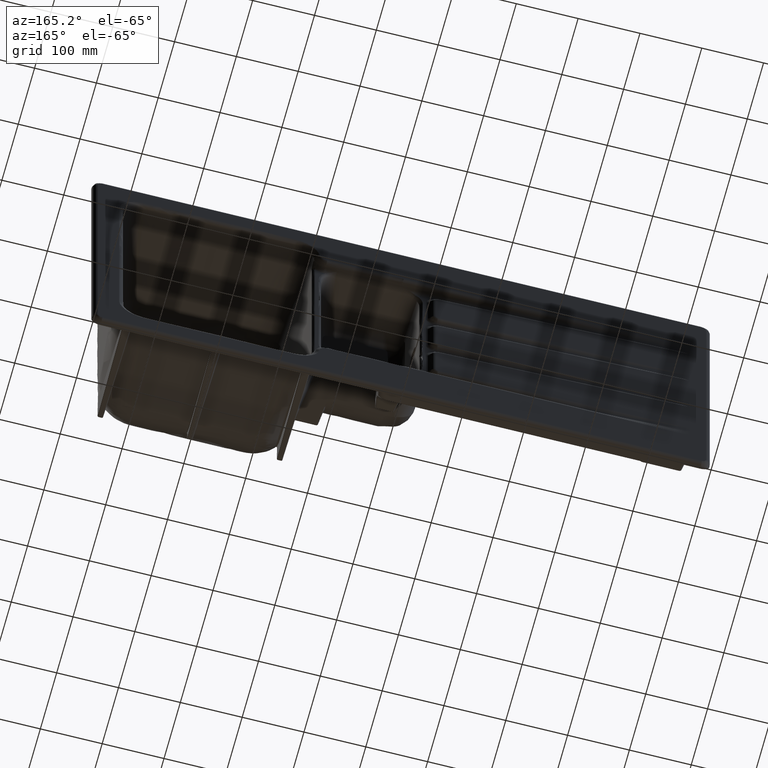
[diagram: clean part render]
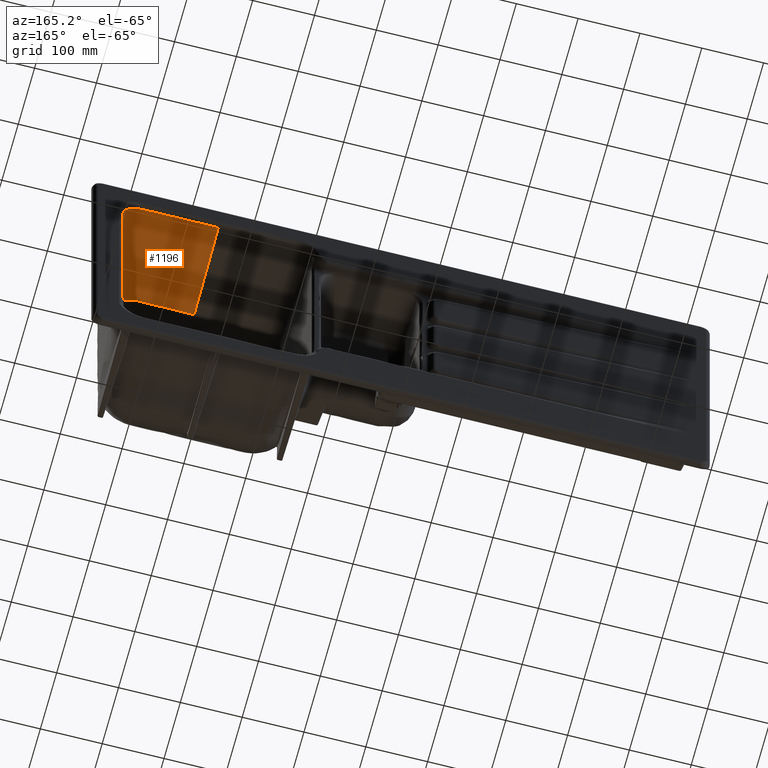
[diagram: same view with one face highlighted and labeled with its STEP entity id]
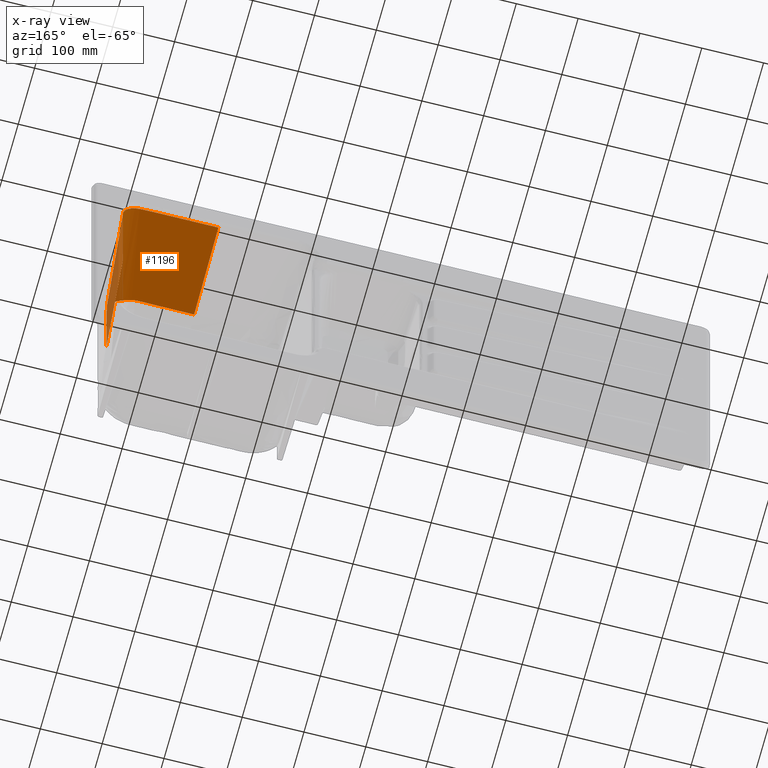
[diagram: x-ray of the same camera — body ghosted, the highlighted face saturated]
A machine part, auxiliary view. The second image highlights one B-rep face of the part: STEP entity #1196.
The next image is the same camera in x-ray: the body ghosted, the highlighted face saturated — about 8% of this face is hidden behind the body in this view.
In plain terms, the highlighted face is a freeform B-spline surface patch.
Its self-contained STEP definition (entity closure, byte-faithful):
#1196=ADVANCED_FACE('',(#1743),#1665,.T.);
#1665=B_SPLINE_SURFACE_WITH_KNOTS('',3,3,((#14514,#14515,#14516,#14517,
#14518,#14519,#14520,#14521,#14522,#14523,#14524,#14525,#14526,#14527,#14528,
#14529,#14530,#14531,#14532,#14533,#14534,#14535,#14536,#14537,#14538,#14539,
#14540,#14541,#14542,#14543,#14544,#14545,#14546,#14547,#14548,#14549,#14550,
#14551,#14552,#14553,#14554,#14555,#14556,#14557,#14558),(#14559,#14560,
#14561,#14562,#14563,#14564,#14565,#14566,#14567,#14568,#14569,#14570,#14571,
#14572,#14573,#14574,#14575,#14576,#14577,#14578,#14579,#14580,#14581,#14582,
#14583,#14584,#14585,#14586,#14587,#14588,#14589,#14590,#14591,#14592,#14593,
#14594,#14595,#14596,#14597,#14598,#14599,#14600,#14601,#14602,#14603),
(#14604,#14605,#14606,#14607,#14608,#14609,#14610,#14611,#14612,#14613,
#14614,#14615,#14616,#14617,#14618,#14619,#14620,#14621,#14622,#14623,#14624,
#14625,#14626,#14627,#14628,#14629,#14630,#14631,#14632,#14633,#14634,#14635,
#14636,#14637,#14638,#14639,#14640,#14641,#14642,#14643,#14644,#14645,#14646,
#14647,#14648),(#14649,#14650,#14651,#14652,#14653,#14654,#14655,#14656,
#14657,#14658,#14659,#14660,#14661,#14662,#14663,#14664,#14665,#14666,#14667,
#14668,#14669,#14670,#14671,#14672,#14673,#14674,#14675,#14676,#14677,#14678,
#14679,#14680,#14681,#14682,#14683,#14684,#14685,#14686,#14687,#14688,#14689,
#14690,#14691,#14692,#14693),(#14694,#14695,#14696,#14697,#14698,#14699,
#14700,#14701,#14702,#14703,#14704,#14705,#14706,#14707,#14708,#14709,#14710,
#14711,#14712,#14713,#14714,#14715,#14716,#14717,#14718,#14719,#14720,#14721,
#14722,#14723,#14724,#14725,#14726,#14727,#14728,#14729,#14730,#14731,#14732,
#14733,#14734,#14735,#14736,#14737,#14738)),.UNSPECIFIED.,.F.,.F.,.F.,(4,
1,4),(4,1,1,1,1,1,1,1,1,1,1,1,1,1,1,1,1,1,1,1,1,1,1,1,1,1,1,1,1,1,1,1,1,
1,1,1,1,1,1,1,1,1,4),(0.,0.5,1.),(0.,0.2,0.3,0.4,0.5,0.55,0.55625,0.559375,
0.5609375,0.5625,0.56328125,0.56875,0.575,0.5875,0.59375,0.596875,0.5984375,
0.6,0.6125,0.625,0.6375,0.65,0.6625,0.675,0.6875,0.7,0.7125,0.715625,0.7171875,
0.71875,0.721875,0.725,0.7375,0.75,0.7625,0.765625,0.7671875,0.76875,0.771875,
0.775,0.8,0.9,1.),.UNSPECIFIED.);
#1743=FACE_OUTER_BOUND('',#2200,.T.);
#2200=EDGE_LOOP('',(#3225,#3226,#3227,#3228));
#2692=B_SPLINE_CURVE_WITH_KNOTS('',3,(#10734,#10735,#10736,#10737,#10738,
#10739,#10740,#10741,#10742,#10743,#10744,#10745,#10746,#10747,#10748,#10749,
#10750,#10751,#10752,#10753,#10754,#10755,#10756,#10757,#10758,#10759,#10760,
#10761,#10762,#10763,#10764,#10765,#10766,#10767,#10768,#10769,#10770,#10771,
#10772,#10773,#10774,#10775,#10776,#10777,#10778,#10779,#10780,#10781,#10782,
#10783,#10784,#10785,#10786,#10787,#10788,#10789,#10790,#10791,#10792,#10793,
#10794,#10795,#10796,#10797,#10798,#10799,#10800),.UNSPECIFIED.,.F.,.F.,
(4,2,2,2,2,2,2,2,2,1,1,1,2,2,2,2,1,1,1,2,2,2,2,2,2,2,2,1,1,1,1,2,2,1,1,
1,1,1,2,2,4),(0.,0.25000000000012,0.31250000000015,0.343750000000166,0.359375000000174,
0.375000000000182,0.437500000000213,0.500000000000245,0.507812500000249,
0.511718750000251,0.513671875000252,0.514648437500252,0.515136718750252,
0.515625000000253,0.523437500000251,0.527343750000251,0.529296875000251,
0.53027343750025,0.53076171875025,0.53100585937525,0.53125000000025,0.546875000000241,
0.554687500000236,0.558593750000233,0.560546875000232,0.562500000000231,
0.593750000000212,0.609375000000203,0.617187500000199,0.621093750000196,
0.623046875000195,0.624023437500195,0.625000000000194,0.687500000000162,
0.718750000000146,0.734375000000138,0.742187500000134,0.746093750000132,
0.748046875000131,0.75000000000013,1.),.UNSPECIFIED.);
#2701=B_SPLINE_CURVE_WITH_KNOTS('',3,(#14386,#14387,#14388,#14389,#14390),
 .UNSPECIFIED.,.F.,.F.,(4,1,4),(0.,0.0449458794078479,1.),.UNSPECIFIED.);
#2702=B_SPLINE_CURVE_WITH_KNOTS('',3,(#14392,#14393,#14394,#14395,#14396,
#14397,#14398,#14399,#14400,#14401,#14402,#14403,#14404,#14405,#14406,#14407,
#14408,#14409,#14410,#14411,#14412,#14413,#14414,#14415,#14416,#14417,#14418,
#14419,#14420,#14421,#14422,#14423,#14424,#14425,#14426,#14427,#14428,#14429,
#14430,#14431,#14432,#14433,#14434,#14435,#14436,#14437,#14438,#14439,#14440,
#14441,#14442,#14443,#14444,#14445,#14446,#14447,#14448,#14449,#14450,#14451,
#14452,#14453,#14454,#14455,#14456,#14457,#14458,#14459,#14460,#14461,#14462,
#14463,#14464,#14465,#14466,#14467,#14468,#14469,#14470,#14471,#14472,#14473,
#14474,#14475,#14476,#14477,#14478,#14479,#14480,#14481,#14482,#14483,#14484,
#14485,#14486,#14487,#14488,#14489,#14490,#14491,#14492,#14493,#14494,#14495,
#14496,#14497,#14498,#14499,#14500,#14501,#14502,#14503,#14504,#14505,#14506,
#14507),.UNSPECIFIED.,.F.,.F.,(4,1,2,2,2,1,2,2,2,2,2,2,2,2,1,1,2,2,2,2,
2,2,2,2,2,2,2,2,2,2,2,2,2,2,2,2,2,2,2,2,2,1,1,1,2,2,2,2,2,2,1,2,2,2,2,2,
2,2,2,2,2,4),(0.,0.125000000000005,0.187500000000007,0.218750000000009,
0.234375000000009,0.24218750000001,0.24609375000001,0.248046875000011,0.249023437500011,
0.250000000000011,0.281250000000018,0.285156250000019,0.285644531250019,
0.286132812500019,0.287109375000018,0.289062500000016,0.296875000000011,
0.30078125000001,0.304687500000008,0.308593750000006,0.310546875000006,
0.312500000000005,0.320312500000001,0.321289062500001,0.322265625,0.324218749999999,
0.328124999999995,0.343749999999981,0.351562499999974,0.359374999999968,
0.374999999999954,0.39062499999994,0.398437499999934,0.406249999999927,
0.4374999999999,0.453124999999886,0.468749999999872,0.484374999999858,0.492187499999851,
0.496093749999847,0.498046874999846,0.499023437499845,0.499511718749845,
0.499755859374845,0.499877929687345,0.499999999999845,0.500976562499845,
0.501953124999845,0.503906249999845,0.507812499999845,0.508789062499846,
0.509277343749846,0.509765624999846,0.510253906249846,0.510742187499846,
0.511718749999846,0.515624999999847,0.531249999999852,0.562499999999862,
0.624999999999882,0.749999999999921,1.),.UNSPECIFIED.);
#2703=B_SPLINE_CURVE_WITH_KNOTS('',3,(#14509,#14510,#14511,#14512,#14513),
 .UNSPECIFIED.,.F.,.F.,(4,1,4),(0.,0.5,1.),.UNSPECIFIED.);
#3225=ORIENTED_EDGE('',*,*,#6030,.F.);
#3226=ORIENTED_EDGE('',*,*,#6031,.F.);
#3227=ORIENTED_EDGE('',*,*,#6032,.F.);
#3228=ORIENTED_EDGE('',*,*,#6012,.T.);
#5383=VERTEX_POINT('',#10733);
#5384=VERTEX_POINT('',#10801);
#5401=VERTEX_POINT('',#14391);
#5402=VERTEX_POINT('',#14508);
#6012=EDGE_CURVE('',#5384,#5383,#2692,.T.);
#6030=EDGE_CURVE('',#5401,#5383,#2701,.T.);
#6031=EDGE_CURVE('',#5402,#5401,#2702,.T.);
#6032=EDGE_CURVE('',#5384,#5402,#2703,.T.);
#10733=CARTESIAN_POINT('',(449.410126647943,-7.35768934570756,3.3520722148054E-6));
#10734=CARTESIAN_POINT('',(295.000033009706,-7.35768810026909,204.410081750924));
#10735=CARTESIAN_POINT('',(323.762872634016,-7.3576882387706,204.41008192212));
#10736=CARTESIAN_POINT('',(352.526818424716,-7.34570807435559,204.409053511811));
#10737=CARTESIAN_POINT('',(388.484506113243,-7.31575441930977,204.406672729104));
#10738=CARTESIAN_POINT('',(395.677822508684,-7.30901479005555,204.425932769051));
#10739=CARTESIAN_POINT('',(406.461886901031,-7.29778201393076,204.366805800515));
#10740=CARTESIAN_POINT('',(410.054766588432,-7.29385053348496,204.333253705506));
#10741=CARTESIAN_POINT('',(415.437079611096,-7.28767248482899,204.258270834636));
#10742=CARTESIAN_POINT('',(417.232832315598,-7.2855663306314,204.268628590184));
#10743=CARTESIAN_POINT('',(420.804936652063,-7.28126041394238,203.933736503266));
#10744=CARTESIAN_POINT('',(422.578301300992,-7.27906065145095,203.621933443321));
#10745=CARTESIAN_POINT('',(431.265339939342,-7.26782782113184,201.359272584579));
#10746=CARTESIAN_POINT('',(437.602068523727,-7.2580926981996,197.233527928148));
#10747=CARTESIAN_POINT('',(446.543337286838,-7.23712483281403,185.967109748013));
#10748=CARTESIAN_POINT('',(449.122336222742,-7.22582868387024,178.821826276105));
#10749=CARTESIAN_POINT('',(449.328845917198,-7.21242084684541,170.789604846908));
#10750=CARTESIAN_POINT('',(449.329101794107,-7.2178024693185,169.896169593573));
#10751=CARTESIAN_POINT('',(449.341135744542,-7.2361819693199,168.55503489026));
#10752=CARTESIAN_POINT('',(449.346427061515,-7.24794848563411,167.884194114461));
#10753=CARTESIAN_POINT('',(449.351561127445,-7.26618542479627,167.101096400305));
#10754=CARTESIAN_POINT('',(449.35389674369,-7.27643122784048,166.709438449428));
#10755=CARTESIAN_POINT('',(449.354850647415,-7.28106385766071,166.541562028729));
#10756=CARTESIAN_POINT('',(449.35547593466,-7.28420596005828,166.429639338122));
#10757=CARTESIAN_POINT('',(449.356030086953,-7.28713136141473,166.32794740893));
#10758=CARTESIAN_POINT('',(449.356969463863,-7.29218418322287,166.153895342832));
#10759=CARTESIAN_POINT('',(449.360818791732,-7.29776637253308,165.625075009387));
#10760=CARTESIAN_POINT('',(449.369219747676,-7.30737935558219,164.284033151015));
#10761=CARTESIAN_POINT('',(449.372431062133,-7.31079029707118,163.745712874936));
#10762=CARTESIAN_POINT('',(449.377359744753,-7.31621658176195,162.80121912143));
#10763=CARTESIAN_POINT('',(449.379848826302,-7.31900719196393,162.294718940854));
#10764=CARTESIAN_POINT('',(449.382648930114,-7.32239845932318,161.643849383665));
#10765=CARTESIAN_POINT('',(449.384001595828,-7.32412798000003,161.303425633654));
#10766=CARTESIAN_POINT('',(449.384568837158,-7.32487646444167,161.154317749963));
#10767=CARTESIAN_POINT('',(449.384943995217,-7.32537706766708,161.054198711983));
#10768=CARTESIAN_POINT('',(449.385260936317,-7.32580690919673,160.967758786807));
#10769=CARTESIAN_POINT('',(449.388743814567,-7.33056374442754,160.009022502961));
#10770=CARTESIAN_POINT('',(449.393123116343,-7.33419691507751,158.642865711614));
#10771=CARTESIAN_POINT('',(449.395195021087,-7.33807038685766,155.960294476629));
#10772=CARTESIAN_POINT('',(449.394984195834,-7.3390988264868,154.960565180557));
#10773=CARTESIAN_POINT('',(449.395179768955,-7.34024730719303,153.302677793205));
#10774=CARTESIAN_POINT('',(449.395255411718,-7.34056443741586,152.723665639687));
#10775=CARTESIAN_POINT('',(449.395375448097,-7.34094157294577,151.815572602516));
#10776=CARTESIAN_POINT('',(449.395417218347,-7.34105085814118,151.506279120519));
#10777=CARTESIAN_POINT('',(449.39550538787,-7.34123657260632,150.874500494429));
#10778=CARTESIAN_POINT('',(449.39555922754,-7.34132196889944,150.502834014003));
#10779=CARTESIAN_POINT('',(449.396272231162,-7.34218952842874,145.744539636986));
#10780=CARTESIAN_POINT('',(449.396926435027,-7.34291586941098,141.71697326847));
#10781=CARTESIAN_POINT('',(449.397795548515,-7.34387186658471,136.351868918513));
#10782=CARTESIAN_POINT('',(449.398203520715,-7.34431648046858,133.838377978691));
#10783=CARTESIAN_POINT('',(449.398626155396,-7.34477709449264,131.201829100319));
#10784=CARTESIAN_POINT('',(449.398823925589,-7.34499291124627,129.957518946356));
#10785=CARTESIAN_POINT('',(449.398919403276,-7.34509720133398,129.353854938103));
#10786=CARTESIAN_POINT('',(449.39895959137,-7.34514112218221,129.099104163245));
#10787=CARTESIAN_POINT('',(449.398986221111,-7.34517023059539,128.930150840308));
#10788=CARTESIAN_POINT('',(449.398993922137,-7.3451786490038,128.88127857972));
#10789=CARTESIAN_POINT('',(449.400208502799,-7.34650671603368,121.161860905386));
#10790=CARTESIAN_POINT('',(449.401806864828,-7.34830130107226,110.09625502179));
#10791=CARTESIAN_POINT('',(449.403388608728,-7.35010575979479,97.7733195295326));
#10792=CARTESIAN_POINT('',(449.404115210866,-7.35093601467108,91.7585878185053));
#10793=CARTESIAN_POINT('',(449.404463234789,-7.35133318940967,88.787906137363));
#10794=CARTESIAN_POINT('',(449.404633523386,-7.35152729365809,87.3117363570904));
#10795=CARTESIAN_POINT('',(449.404705716479,-7.35160952106257,86.6810573943404));
#10796=CARTESIAN_POINT('',(449.404753671272,-7.35166412602949,86.2610414701822));
#10797=CARTESIAN_POINT('',(449.404773945331,-7.35168720633331,86.0830909780978));
#10798=CARTESIAN_POINT('',(449.408311172243,-7.35571261763534,54.9411551211523));
#10799=CARTESIAN_POINT('',(449.410111574505,-7.35768822704235,26.3272115565521));
#10800=CARTESIAN_POINT('',(449.410111417805,-7.35768810026912,3.34282743224081E-6));
#10801=CARTESIAN_POINT('',(295.000033012614,-7.35769038518784,204.410110151615));
#14386=CARTESIAN_POINT('',(436.051988911837,-158.802344045959,3.34282748193738E-6));
#14387=CARTESIAN_POINT('',(436.269329609573,-156.534967570554,3.3428274817944E-6));
#14388=CARTESIAN_POINT('',(441.088473189725,-106.086585107794,3.34282747783449E-6));
#14389=CARTESIAN_POINT('',(445.524103126528,-55.6016993072301,3.34282745622116E-6));
#14390=CARTESIAN_POINT('',(449.410111417805,-7.35768810026897,3.34282747067908E-6));
#14391=CARTESIAN_POINT('',(436.051988911836,-158.802344045964,-2.72442016075284E-6));
#14392=CARTESIAN_POINT('',(295.000033009702,-156.289445109343,191.292528739458));
#14393=CARTESIAN_POINT('',(307.913101799891,-156.289606400951,191.29254136962));
#14394=CARTESIAN_POINT('',(327.281482695056,-156.267529174652,191.295241603768));
#14395=CARTESIAN_POINT('',(346.650665461854,-156.215512129597,191.301386157796));
#14396=CARTESIAN_POINT('',(356.335610090697,-156.18480827089,191.304984313203));
#14397=CARTESIAN_POINT('',(359.563984917866,-156.173810054597,191.306269222873));
#14398=CARTESIAN_POINT('',(364.406619895689,-156.15628951399,191.308268483869));
#14399=CARTESIAN_POINT('',(366.02084423464,-156.150193552652,191.308956075039));
#14400=CARTESIAN_POINT('',(368.44220028133,-156.140925487038,191.30999212909));
#14401=CARTESIAN_POINT('',(369.652884960633,-156.136598263578,191.310479308582));
#14402=CARTESIAN_POINT('',(370.863574042843,-156.131695436702,191.311017898926));
#14403=CARTESIAN_POINT('',(371.468918823597,-156.129061762474,191.311303903581));
#14404=CARTESIAN_POINT('',(371.670700527487,-156.128115914423,191.311405523958));
#14405=CARTESIAN_POINT('',(371.973371241107,-156.126539474288,191.311572670543));
#14406=CARTESIAN_POINT('',(372.074261171732,-156.125990561627,191.31163057348));
#14407=CARTESIAN_POINT('',(372.276040083489,-156.124845675568,191.311750787738));
#14408=CARTESIAN_POINT('',(372.422225257502,-156.1239715175,191.31184207235));
#14409=CARTESIAN_POINT('',(374.256766076399,-156.112704761876,191.31301551942));
#14410=CARTESIAN_POINT('',(377.298537629162,-156.088193285339,191.315418684363));
#14411=CARTESIAN_POINT('',(382.150787309484,-155.993415457746,191.325050256047));
#14412=CARTESIAN_POINT('',(382.713266802304,-155.982128693025,191.326264306751));
#14413=CARTESIAN_POINT('',(383.368633219332,-155.968330669756,191.327518396222));
#14414=CARTESIAN_POINT('',(383.441671810064,-155.966776377207,191.327656108857));
#14415=CARTESIAN_POINT('',(383.588049702334,-155.96361418816,191.327933479631));
#14416=CARTESIAN_POINT('',(383.575780907569,-155.963874217608,191.327910415605));
#14417=CARTESIAN_POINT('',(383.632133980247,-155.962643078654,191.328017860511));
#14418=CARTESIAN_POINT('',(383.744693528867,-155.96016368229,191.328233797797));
#14419=CARTESIAN_POINT('',(384.155496999415,-155.950860723001,191.329049026802));
#14420=CARTESIAN_POINT('',(384.52131986335,-155.941618904879,191.329933574374));
#14421=CARTESIAN_POINT('',(384.945942279862,-155.929227772565,191.331410528348));
#14422=CARTESIAN_POINT('',(385.086014276703,-155.924933693924,191.331986859349));
#14423=CARTESIAN_POINT('',(385.393222579266,-155.918068232423,191.332975666037));
#14424=CARTESIAN_POINT('',(385.528531538913,-155.91328016252,191.333923635816));
#14425=CARTESIAN_POINT('',(385.964231047946,-155.915073220194,191.333409924088));
#14426=CARTESIAN_POINT('',(386.29496829232,-155.92340540674,191.332983097876));
#14427=CARTESIAN_POINT('',(387.094372558505,-155.959615109643,191.316844210051));
#14428=CARTESIAN_POINT('',(387.53719370148,-155.984979077931,191.3040764055));
#14429=CARTESIAN_POINT('',(388.367257803841,-156.034834127106,191.267051146354));
#14430=CARTESIAN_POINT('',(388.776048291197,-156.06059726079,191.243385002504));
#14431=CARTESIAN_POINT('',(390.797078452428,-156.193783793128,191.100646397585));
#14432=CARTESIAN_POINT('',(392.331040696783,-156.312303224039,190.914563628671));
#14433=CARTESIAN_POINT('',(394.079547467261,-156.468417692254,190.613730293491));
#14434=CARTESIAN_POINT('',(394.274126895209,-156.486090738869,190.578981872118));
#14435=CARTESIAN_POINT('',(394.664271790331,-156.522132161249,190.506757709249));
#14436=CARTESIAN_POINT('',(394.71821497551,-156.527249999824,190.496204817563));
#14437=CARTESIAN_POINT('',(395.034653280214,-156.557074434351,190.435134123014));
#14438=CARTESIAN_POINT('',(395.246319782895,-156.577375374986,190.392807481661));
#14439=CARTESIAN_POINT('',(395.884163734478,-156.63960978213,190.260834426502));
#14440=CARTESIAN_POINT('',(396.312345540501,-156.682807638032,190.166269442894));
#14441=CARTESIAN_POINT('',(398.461494211219,-156.906995778082,189.659064061278));
#14442=CARTESIAN_POINT('',(400.217162828406,-157.113580496066,189.141952325875));
#14443=CARTESIAN_POINT('',(402.888400072632,-157.465486774112,188.165544362896));
#14444=CARTESIAN_POINT('',(403.864116272667,-157.604725640173,187.767702332318));
#14445=CARTESIAN_POINT('',(405.192554977655,-157.788425414138,187.192318908307));
#14446=CARTESIAN_POINT('',(405.855849844969,-157.876617317336,186.888479969066));
#14447=CARTESIAN_POINT('',(407.816143120962,-158.126550510682,185.940424396447));
#14448=CARTESIAN_POINT('',(409.107759990128,-158.276813476249,185.247743024197));
#14449=CARTESIAN_POINT('',(411.627650167201,-158.541059964254,183.756378086655));
#14450=CARTESIAN_POINT('',(412.833228687412,-158.652769238376,182.971974605423));
#14451=CARTESIAN_POINT('',(414.550443311657,-158.792008144164,181.758351005273));
#14452=CARTESIAN_POINT('',(415.013379326227,-158.826567967874,181.416757120036));
#14453=CARTESIAN_POINT('',(415.98518666997,-158.894464616638,180.67694552106));
#14454=CARTESIAN_POINT('',(416.477053409534,-158.926143239007,180.289419665437));
#14455=CARTESIAN_POINT('',(418.963716758254,-159.071079917738,178.25538563016));
#14456=CARTESIAN_POINT('',(421.026782659002,-159.143452754181,176.331827540945));
#14457=CARTESIAN_POINT('',(424.086018300738,-159.133967671692,172.903464484159));
#14458=CARTESIAN_POINT('',(425.10913247808,-159.110424372232,171.657439381731));
#14459=CARTESIAN_POINT('',(427.069487263239,-159.016154729577,169.025069068094));
#14460=CARTESIAN_POINT('',(428.010595739791,-158.946329167383,167.638981397016));
#14461=CARTESIAN_POINT('',(429.848253149958,-158.743086829164,164.61273721377));
#14462=CARTESIAN_POINT('',(430.739069937772,-158.609591068181,162.977817579066));
#14463=CARTESIAN_POINT('',(431.991776083591,-158.347217905304,160.320600997917));
#14464=CARTESIAN_POINT('',(432.395972579527,-158.248831486526,159.397500497513));
#14465=CARTESIAN_POINT('',(432.964260441125,-158.087742751329,157.988336004866));
#14466=CARTESIAN_POINT('',(433.147501928659,-158.031836598843,157.514591438961));
#14467=CARTESIAN_POINT('',(433.411156219088,-157.94518246651,156.802355709088));
#14468=CARTESIAN_POINT('',(433.4971494471,-157.915838942754,156.564728564485));
#14469=CARTESIAN_POINT('',(433.623149986289,-157.871176429617,156.208324306089));
#14470=CARTESIAN_POINT('',(433.685511730048,-157.848651805755,156.029883571074));
#14471=CARTESIAN_POINT('',(433.757159671496,-157.822027492425,155.821249998034));
#14472=CARTESIAN_POINT('',(433.792708092723,-157.808628028337,155.716815544095));
#14473=CARTESIAN_POINT('',(433.807884225515,-157.802866594236,155.672032223341));
#14474=CARTESIAN_POINT('',(433.817988573277,-157.799021448007,155.642170911641));
#14475=CARTESIAN_POINT('',(433.812027517642,-157.801305332596,155.65986237208));
#14476=CARTESIAN_POINT('',(433.956439719525,-157.746087438889,155.231809358581));
#14477=CARTESIAN_POINT('',(434.07430084848,-157.698870772081,154.869640457644));
#14478=CARTESIAN_POINT('',(434.325634194869,-157.588877142147,154.063814689949));
#14479=CARTESIAN_POINT('',(434.493517387403,-157.507556100267,153.503976633706));
#14480=CARTESIAN_POINT('',(434.932416075023,-157.288911619788,151.917467560159));
#14481=CARTESIAN_POINT('',(435.179297684045,-157.154452857185,150.877683287083));
#14482=CARTESIAN_POINT('',(435.803111822132,-156.781737087143,147.80096679773));
#14483=CARTESIAN_POINT('',(436.068426108481,-156.5656247803,145.734425486461));
#14484=CARTESIAN_POINT('',(436.234194782992,-156.355125569649,143.34289455466));
#14485=CARTESIAN_POINT('',(436.272025456295,-156.296344308061,142.640283280362));
#14486=CARTESIAN_POINT('',(436.294175979806,-156.243947972636,141.962778652064));
#14487=CARTESIAN_POINT('',(436.30569960039,-156.210417307473,141.517003114324));
#14488=CARTESIAN_POINT('',(436.310328070485,-156.190351363279,141.258850875761));
#14489=CARTESIAN_POINT('',(436.314147861085,-156.170921079225,140.933115486172));
#14490=CARTESIAN_POINT('',(436.313966903276,-156.172599700911,140.877268417076));
#14491=CARTESIAN_POINT('',(436.314315441553,-156.172254857435,140.730816031189));
#14492=CARTESIAN_POINT('',(436.314338334193,-156.172812235479,140.664388153508));
#14493=CARTESIAN_POINT('',(436.314176764254,-156.175835722171,140.477840728093));
#14494=CARTESIAN_POINT('',(436.313744708757,-156.179796280742,140.37182775197));
#14495=CARTESIAN_POINT('',(436.311352023307,-156.202453824873,139.869684618589));
#14496=CARTESIAN_POINT('',(436.308735872984,-156.227054050549,139.531229395975));
#14497=CARTESIAN_POINT('',(436.298208052106,-156.337259230482,137.725925469704));
#14498=CARTESIAN_POINT('',(436.29118010378,-156.412632619764,136.176659943124));
#14499=CARTESIAN_POINT('',(436.268143604088,-156.650142266382,131.694730498758));
#14500=CARTESIAN_POINT('',(436.253660226117,-156.80029131299,128.70396928597));
#14501=CARTESIAN_POINT('',(436.212760895163,-157.223704305039,119.732159015146));
#14502=CARTESIAN_POINT('',(436.188792468725,-157.471015884561,113.74882794002));
#14503=CARTESIAN_POINT('',(436.131075308595,-158.057837558834,95.7958960063355));
#14504=CARTESIAN_POINT('',(436.121195572631,-158.143455704859,83.8198473146721));
#14505=CARTESIAN_POINT('',(436.074615865114,-158.587543319428,47.8973373578723));
#14506=CARTESIAN_POINT('',(436.051987346934,-158.802357571479,23.9487513249653));
#14507=CARTESIAN_POINT('',(436.051988911837,-158.802344045959,3.3428272366681E-6));
#14508=CARTESIAN_POINT('',(294.999917440254,-156.289445062105,191.292528258012));
#14509=CARTESIAN_POINT('',(295.000033009706,-1.13686837721616E-12,205.000003342828));
#14510=CARTESIAN_POINT('',(295.000033009706,-50.6995016572681,200.953871699917));
#14511=CARTESIAN_POINT('',(295.000033009706,-152.036766958223,192.088009793362));
#14512=CARTESIAN_POINT('',(295.000033009707,-253.226964426287,181.677014660903));
#14513=CARTESIAN_POINT('',(295.000033009707,-303.822063160319,176.471517094673));
#14514=CARTESIAN_POINT('',(450.000026942931,-2.86200524837289E-12,-86.4590664029188));
#14515=CARTESIAN_POINT('',(450.000030803607,-2.79135910385021E-12,-57.639376472613));
#14516=CARTESIAN_POINT('',(450.000034112758,-2.66951859082273E-12,-14.4098415974813));
#14517=CARTESIAN_POINT('',(450.000031906658,-2.46474111680355E-12,43.2295381818222));
#14518=CARTESIAN_POINT('',(450.000002592651,-2.29401891202888E-12,86.4590728301297));
#14519=CARTESIAN_POINT('',(450.000125088166,-2.14082001622003E-12,122.48368604529));
#14520=CARTESIAN_POINT('',(449.999919555893,-2.04151842464747E-12,144.999067365592));
#14521=CARTESIAN_POINT('',(450.000075760421,-2.0033895776466E-12,153.554913878198));
#14522=CARTESIAN_POINT('',(450.000099139717,-1.99635416840861E-12,155.130990830267));
#14523=CARTESIAN_POINT('',(450.000109159415,-1.99233066043473E-12,156.031606208486));
#14524=CARTESIAN_POINT('',(450.000113655434,-1.98981461652048E-12,156.594490807729));
#14525=CARTESIAN_POINT('',(450.000119436029,-1.98478052072752E-12,157.720259984136));
#14526=CARTESIAN_POINT('',(450.000113783891,-1.97671744106402E-12,159.521490563936));
#14527=CARTESIAN_POINT('',(450.000018211384,-1.96106529001293E-12,163.011374230497));
#14528=CARTESIAN_POINT('',(449.999722244909,-1.94486075532175E-12,166.613833432952));
#14529=CARTESIAN_POINT('',(450.000499156905,-1.93064368367312E-12,169.765992357469));
#14530=CARTESIAN_POINT('',(449.999335771464,-1.92352605156349E-12,171.342061151405));
#14531=CARTESIAN_POINT('',(450.001427684451,-1.91945629565691E-12,172.242690843221));
#14532=CARTESIAN_POINT('',(449.96185422873,-1.90927772777714E-12,174.494011471142));
#14533=CARTESIAN_POINT('',(449.541577697709,-1.891942591115E-12,178.311377584054));
#14534=CARTESIAN_POINT('',(448.077246753315,-1.86739807601258E-12,183.53177021299));
#14535=CARTESIAN_POINT('',(445.781685244506,-1.84279003661639E-12,188.44364425805));
#14536=CARTESIAN_POINT('',(442.716079962637,-1.81812632962383E-12,192.915592768773));
#14537=CARTESIAN_POINT('',(438.962472146825,-1.79341481173228E-12,196.827973548328));
#14538=CARTESIAN_POINT('',(434.621294148291,-1.76866333963914E-12,200.076115966565));
#14539=CARTESIAN_POINT('',(429.808680946529,-1.74387977004179E-12,202.573118492129));
#14540=CARTESIAN_POINT('',(424.653388847511,-1.71907195963763E-12,204.252186907284));
#14541=CARTESIAN_POINT('',(420.633361335484,-1.70045381375244E-12,204.864320003979));
#14542=CARTESIAN_POINT('',(418.159093222678,-1.68907361518548E-12,204.985001900019));
#14543=CARTESIAN_POINT('',(417.25857432114,-1.68493515605995E-12,205.001316357585));
#14544=CARTESIAN_POINT('',(416.357938934708,-1.68079658066046E-12,204.99956173464));
#14545=CARTESIAN_POINT('',(415.232169347361,-1.67562318176018E-12,204.999445163959));
#14546=CARTESIAN_POINT('',(412.530334016173,-1.66320669503838E-12,205.000570290745));
#14547=CARTESIAN_POINT('',(408.477557259399,-1.64458165055819E-12,205.000139217314));
#14548=CARTESIAN_POINT('',(403.073868415024,-1.61975544390069E-12,204.999989380787));
#14549=CARTESIAN_POINT('',(399.021100473251,-1.60114707091768E-12,204.999941007427));
#14550=CARTESIAN_POINT('',(396.544408597287,-1.58978184714559E-12,204.99992900256));
#14551=CARTESIAN_POINT('',(395.643793334749,-1.58564981548718E-12,204.999926364531));
#14552=CARTESIAN_POINT('',(394.743178050242,-1.5815183222796E-12,204.999924815457));
#14553=CARTESIAN_POINT('',(393.617408905867,-1.57635500372817E-12,204.999924803471));
#14554=CARTESIAN_POINT('',(389.114332147887,-1.55570772783507E-12,204.999933766156));
#14555=CARTESIAN_POINT('',(370.651714592646,-1.47117211533637E-12,205.000113648618));
#14556=CARTESIAN_POINT('',(338.229564825132,-1.3241134165031E-12,205.000103687895));
#14557=CARTESIAN_POINT('',(309.409877958621,-1.19805902317957E-12,205.000003342827));
#14558=CARTESIAN_POINT('',(295.000033009706,-1.13686837721616E-12,205.000003342828));
#14559=CARTESIAN_POINT('',(445.91048938509,-50.6900788914352,-83.7013058682579));
#14560=CARTESIAN_POINT('',(445.938299073379,-50.6937521730323,-55.807534638195));
#14561=CARTESIAN_POINT('',(445.962005918391,-50.698543409898,-13.9578798086972));
#14562=CARTESIAN_POINT('',(445.94559454528,-50.7030152309722,41.8656545890427));
#14563=CARTESIAN_POINT('',(445.913768618184,-50.7054108494048,83.7408017043102));
#14564=CARTESIAN_POINT('',(445.874798708956,-50.7066086586208,118.63925601866));
#14565=CARTESIAN_POINT('',(445.846052714253,-50.7069829740008,140.450200618262));
#14566=CARTESIAN_POINT('',(445.835069201283,-50.7070718739035,148.738150982921));
#14567=CARTESIAN_POINT('',(445.832849017135,-50.7070866125716,150.264872164807));
#14568=CARTESIAN_POINT('',(445.83187502011,-50.7070945667733,151.137281669986));
#14569=CARTESIAN_POINT('',(445.831157664366,-50.7070993431936,151.68253672902));
#14570=CARTESIAN_POINT('',(445.828201078285,-50.7071086036001,152.773045090365));
#14571=CARTESIAN_POINT('',(445.810959031978,-50.7071221725327,154.517770250807));
#14572=CARTESIAN_POINT('',(445.731319655156,-50.7071439296141,157.895909517767));
#14573=CARTESIAN_POINT('',(445.571652079364,-50.7071589022293,161.375648460881));
#14574=CARTESIAN_POINT('',(445.365954827145,-50.7071654527484,164.407492265778));
#14575=CARTESIAN_POINT('',(445.245480484214,-50.7071670903782,165.919369511463));
#14576=CARTESIAN_POINT('',(445.173799596138,-50.7071675582724,166.782054334866));
#14577=CARTESIAN_POINT('',(444.956976269679,-50.7071679481842,168.936412860145));
#14578=CARTESIAN_POINT('',(444.294047130515,-50.707162645383,172.574853916342));
#14579=CARTESIAN_POINT('',(442.630874722334,-50.7071401864601,177.539988479614));
#14580=CARTESIAN_POINT('',(440.272829293652,-50.707102754922,182.22612295569));
#14581=CARTESIAN_POINT('',(437.268865836067,-50.7070503507688,186.532634212439));
#14582=CARTESIAN_POINT('',(433.681793841634,-50.7069829740002,190.366473307015));
#14583=CARTESIAN_POINT('',(429.589158440313,-50.7069006246166,193.64642879238));
#14584=CARTESIAN_POINT('',(425.079517277945,-50.7068033026178,196.303612867625));
#14585=CARTESIAN_POINT('',(420.251698181824,-50.7066910080036,198.28504405846));
#14586=CARTESIAN_POINT('',(416.470792592983,-50.7065955575817,199.235215960617));
#14587=CARTESIAN_POINT('',(414.130673029146,-50.7065329377379,199.605606227396));
#14588=CARTESIAN_POINT('',(413.27736506793,-50.7065096989913,199.71737011109));
#14589=CARTESIAN_POINT('',(412.422794593857,-50.7064861483154,199.814043874309));
#14590=CARTESIAN_POINT('',(411.352446255261,-50.7064561251026,199.930538084317));
#14591=CARTESIAN_POINT('',(408.777178322539,-50.706382197815,200.192553666987));
#14592=CARTESIAN_POINT('',(404.891783070833,-50.7062642884702,200.51415236644));
#14593=CARTESIAN_POINT('',(399.678051429959,-50.7060921033953,200.791433363464));
#14594=CARTESIAN_POINT('',(395.753895968055,-50.7059517351277,200.884887280545));
#14595=CARTESIAN_POINT('',(393.354686401623,-50.7058616654893,200.896827252207));
#14596=CARTESIAN_POINT('',(392.482240277124,-50.7058284449993,200.897755926497));
#14597=CARTESIAN_POINT('',(391.609794176525,-50.7057949125798,200.898305122344));
#14598=CARTESIAN_POINT('',(390.519238930268,-50.7057524121877,200.8995977285));
#14599=CARTESIAN_POINT('',(386.157021390172,-50.7055792913244,200.903989979736));
#14600=CARTESIAN_POINT('',(368.272042419469,-50.7048119447949,200.921906128874));
#14601=CARTESIAN_POINT('',(336.86568204379,-50.70301523097,200.945581279694));
#14602=CARTESIAN_POINT('',(308.953917056767,-50.7007793204324,200.953770564956));
#14603=CARTESIAN_POINT('',(295.000033009706,-50.699501657268,200.953871699917));
#14604=CARTESIAN_POINT('',(437.045418486883,-152.023783683109,-78.0364518224806));
#14605=CARTESIAN_POINT('',(437.072879783955,-152.028844959769,-52.0309227555525));
#14606=CARTESIAN_POINT('',(437.096178416536,-152.035446624981,-13.0136885711246));
#14607=CARTESIAN_POINT('',(437.079527758574,-152.041608179189,39.0331318988743));
#14608=CARTESIAN_POINT('',(437.047679573656,-152.044909011808,78.0756950607204));
#14609=CARTESIAN_POINT('',(437.008589813776,-152.046559428125,110.613647655118));
#14610=CARTESIAN_POINT('',(436.979786807169,-152.047075183231,130.949282725527));
#14611=CARTESIAN_POINT('',(436.969114878452,-152.047197675071,138.676614383514));
#14612=CARTESIAN_POINT('',(436.966596411427,-152.047217982928,140.10006457664));
#14613=CARTESIAN_POINT('',(436.966055679882,-152.047228942725,140.913461028096));
#14614=CARTESIAN_POINT('',(436.965398601146,-152.047235523975,141.421832922905));
#14615=CARTESIAN_POINT('',(436.959529952777,-152.047248283542,142.438574129781));
#14616=CARTESIAN_POINT('',(436.912655395968,-152.047266979664,144.065106982331));
#14617=CARTESIAN_POINT('',(436.683376784264,-152.047296957931,147.209761993677));
#14618=CARTESIAN_POINT('',(436.21483090771,-152.047317588137,150.433819013241));
#14619=CARTESIAN_POINT('',(435.604907202542,-152.047326613853,153.216145990359));
#14620=CARTESIAN_POINT('',(435.25019343598,-152.047328870282,154.595216469929));
#14621=CARTESIAN_POINT('',(435.033477246938,-152.047329514977,155.379489490124));
#14622=CARTESIAN_POINT('',(434.468439851076,-152.047330052223,157.333628333702));
#14623=CARTESIAN_POINT('',(433.330966141416,-152.047322745695,160.603591969818));
#14624=CARTESIAN_POINT('',(431.285472912964,-152.047291800392,165.043413024952));
#14625=CARTESIAN_POINT('',(428.817974723075,-152.047240224886,169.263494502003));
#14626=CARTESIAN_POINT('',(425.952945327701,-152.047168019176,173.224798541639));
#14627=CARTESIAN_POINT('',(422.714713088638,-152.047075183262,176.887480345118));
#14628=CARTESIAN_POINT('',(419.135031057199,-152.046961717145,180.21726446775));
#14629=CARTESIAN_POINT('',(415.247284575782,-152.046827620824,183.181308205651));
#14630=CARTESIAN_POINT('',(411.090426878196,-152.046672894299,185.754273207559));
#14631=CARTESIAN_POINT('',(407.799812046115,-152.046541376753,187.370875914831));
#14632=CARTESIAN_POINT('',(405.735360036777,-152.046455095225,188.234887044944));
#14633=CARTESIAN_POINT('',(404.979154906893,-152.04642307543,188.535453169394));
#14634=CARTESIAN_POINT('',(404.219395685409,-152.04639062584,188.826894459739));
#14635=CARTESIAN_POINT('',(403.263242437753,-152.046349257984,189.174012572541));
#14636=CARTESIAN_POINT('',(400.949157562626,-152.046247396354,189.951619710849));
#14637=CARTESIAN_POINT('',(397.410603281819,-152.046084933503,190.908164830382));
#14638=CARTESIAN_POINT('',(392.592884241687,-152.045847686163,191.728538901194));
#14639=CARTESIAN_POINT('',(388.938009842262,-152.045654278005,192.000470861977));
#14640=CARTESIAN_POINT('',(386.701120760941,-152.045530174438,192.031223725226));
#14641=CARTESIAN_POINT('',(385.887686353049,-152.045484401174,192.032176914141));
#14642=CARTESIAN_POINT('',(385.074251068299,-152.045438198114,192.031998325797));
#14643=CARTESIAN_POINT('',(384.057462231278,-152.045379638422,192.033606229253));
#14644=CARTESIAN_POINT('',(379.990306276176,-152.045141101694,192.037775039228));
#14645=CARTESIAN_POINT('',(363.315085903,-152.044083803764,192.055977251687));
#14646=CARTESIAN_POINT('',(334.033160976497,-152.041608179337,192.079344399326));
#14647=CARTESIAN_POINT('',(308.009751330757,-152.038527402265,192.087823420657));
#14648=CARTESIAN_POINT('',(295.000033009706,-152.036766958223,192.088009793362));
#14649=CARTESIAN_POINT('',(426.805698256212,-253.262353742377,-72.0725608230174));
#14650=CARTESIAN_POINT('',(426.722965973776,-253.248557907459,-48.0284622815413));
#14651=CARTESIAN_POINT('',(426.6526618636,-253.230563340167,-11.9891936256897));
#14652=CARTESIAN_POINT('',(426.702374552639,-253.213768410672,35.9914868318124));
#14653=CARTESIAN_POINT('',(426.797997821234,-253.204771126999,71.9546026219884));
#14654=CARTESIAN_POINT('',(426.914743363566,-253.200272485146,101.916413490121));
#14655=CARTESIAN_POINT('',(426.999669068224,-253.198866659553,120.644301791464));
#14656=CARTESIAN_POINT('',(427.034374113724,-253.19853277597,127.761519617602));
#14657=CARTESIAN_POINT('',(427.039913058674,-253.198477421587,129.072608723642));
#14658=CARTESIAN_POINT('',(427.044595481174,-253.198447547793,129.821805888083));
#14659=CARTESIAN_POINT('',(427.046998638674,-253.198429608872,130.290056658313));
#14660=CARTESIAN_POINT('',(427.044227179485,-253.198394829332,131.2265600285));
#14661=CARTESIAN_POINT('',(426.977374553402,-253.198343868153,132.724570014451));
#14662=CARTESIAN_POINT('',(426.617301559622,-253.198262154538,135.615811797968));
#14663=CARTESIAN_POINT('',(425.859551588734,-253.198205921511,138.563766626891));
#14664=CARTESIAN_POINT('',(424.862794848244,-253.19818131956,141.078856957059));
#14665=CARTESIAN_POINT('',(424.282581077837,-253.198175169071,142.316299650341));
#14666=CARTESIAN_POINT('',(423.92583547216,-253.198173411788,143.017131668604));
#14667=CARTESIAN_POINT('',(423.02511837386,-253.198171947384,144.758497034852));
#14668=CARTESIAN_POINT('',(421.434557146815,-253.198191863241,147.638790427599));
#14669=CARTESIAN_POINT('',(419.037373498731,-253.198276212769,151.523786664959));
#14670=CARTESIAN_POINT('',(416.491356098663,-253.198416795319,155.248746743627));
#14671=CARTESIAN_POINT('',(413.796462526949,-253.198613610892,158.836253017043));
#14672=CARTESIAN_POINT('',(410.938505075155,-253.198866659487,162.299699770535));
#14673=CARTESIAN_POINT('',(407.90340977597,-253.199175941105,165.651782501736));
#14674=CARTESIAN_POINT('',(404.669354728384,-253.199541455746,168.895738543758));
#14675=CARTESIAN_POINT('',(401.215383632747,-253.199963203409,172.033907608337));
#14676=CARTESIAN_POINT('',(398.439073592911,-253.200321688924,174.297683222003));
#14677=CARTESIAN_POINT('',(396.664981160014,-253.200556871822,175.643743436826));
#14678=CARTESIAN_POINT('',(396.011222972256,-253.200644150159,176.128925639565));
#14679=CARTESIAN_POINT('',(395.351620061407,-253.200732600016,176.610962890249));
#14680=CARTESIAN_POINT('',(394.516344832747,-253.20084535894,177.183517984862));
#14681=CARTESIAN_POINT('',(392.479486088235,-253.201123009487,178.464357280332));
#14682=CARTESIAN_POINT('',(389.311848464721,-253.201565844534,180.037648361317));
#14683=CARTESIAN_POINT('',(384.922231631169,-253.202212524289,181.377605597765));
#14684=CARTESIAN_POINT('',(381.560670811611,-253.202739708871,181.810977403631));
#14685=CARTESIAN_POINT('',(379.500765496452,-253.203077985645,181.850367898621));
#14686=CARTESIAN_POINT('',(378.751672097236,-253.203202752663,181.847671632202));
#14687=CARTESIAN_POINT('',(378.002574955989,-253.203328691201,181.843108797048));
#14688=CARTESIAN_POINT('',(377.066207833894,-253.203488310978,181.840494416409));
#14689=CARTESIAN_POINT('',(373.320712312739,-253.204138505297,181.826467262645));
#14690=CARTESIAN_POINT('',(357.963859445948,-253.207020447685,181.774582238824));
#14691=CARTESIAN_POINT('',(330.991517532309,-253.213768410361,181.702021099788));
#14692=CARTESIAN_POINT('',(307.00117627023,-253.22216587504,181.677488541275));
#14693=CARTESIAN_POINT('',(295.000033009705,-253.226964426287,181.677014660903));
#14694=CARTESIAN_POINT('',(421.685838140883,-303.88163877202,-69.090615323285));
#14695=CARTESIAN_POINT('',(421.54800906869,-303.858414381308,-46.0272320445354));
#14696=CARTESIAN_POINT('',(421.430903587131,-303.828121697759,-11.4769461529724));
#14697=CARTESIAN_POINT('',(421.513797949671,-303.799848526414,34.4706642982815));
#14698=CARTESIAN_POINT('',(421.673156945023,-303.784702184595,68.8940564026224));
#14699=CARTESIAN_POINT('',(421.86782013846,-303.777129013656,97.5677964076225));
#14700=CARTESIAN_POINT('',(422.009610198752,-303.774762397714,115.491811324432));
#14701=CARTESIAN_POINT('',(422.067003731361,-303.77420032642,122.303972234646));
#14702=CARTESIAN_POINT('',(422.076571382297,-303.774107140917,123.558880797143));
#14703=CARTESIAN_POINT('',(422.08386538182,-303.774056850327,124.275978318076));
#14704=CARTESIAN_POINT('',(422.087798657437,-303.774026651321,124.724168526018));
#14705=CARTESIAN_POINT('',(422.086575792839,-303.773968102227,125.62055297786));
#14706=CARTESIAN_POINT('',(422.009734132119,-303.773882312398,127.054301530511));
#14707=CARTESIAN_POINT('',(421.584263947301,-303.773744752841,129.818836700113));
#14708=CARTESIAN_POINT('',(420.681911929246,-303.773650088199,132.628740433717));
#14709=CARTESIAN_POINT('',(419.491738671095,-303.773608672413,135.010212440409));
#14710=CARTESIAN_POINT('',(418.798774898766,-303.773598318466,136.176841240547));
#14711=CARTESIAN_POINT('',(418.372014584771,-303.773595360194,136.835952757843));
#14712=CARTESIAN_POINT('',(417.303457635252,-303.773592894964,138.470931385428));
#14713=CARTESIAN_POINT('',(415.486352649515,-303.773626422015,141.156389656489));
#14714=CARTESIAN_POINT('',(412.913323791614,-303.773768418958,144.763973484962));
#14715=CARTESIAN_POINT('',(410.328046786457,-303.774005080536,148.241372864439));
#14716=CARTESIAN_POINT('',(407.718221126574,-303.774336406749,151.641980254745));
#14717=CARTESIAN_POINT('',(405.050401068413,-303.774762397599,155.005809483243));
#14718=CARTESIAN_POINT('',(402.287599135356,-303.775283053085,158.369041518729));
#14719=CARTESIAN_POINT('',(399.380389804685,-303.775898373207,161.752953712812));
#14720=CARTESIAN_POINT('',(396.277862010023,-303.776608357964,165.173724808726));
#14721=CARTESIAN_POINT('',(393.758704366309,-303.77721184501,167.761086875589));
#14722=CARTESIAN_POINT('',(392.129791721632,-303.777607760121,169.348171632767));
#14723=CARTESIAN_POINT('',(391.527257004937,-303.777754687523,169.925661874651));
#14724=CARTESIAN_POINT('',(390.917732249406,-303.777903587105,170.502997105504));
#14725=CARTESIAN_POINT('',(390.142896030243,-303.778093409419,171.188270691022));
#14726=CARTESIAN_POINT('',(388.24465035104,-303.778560816053,172.720726065074));
#14727=CARTESIAN_POINT('',(385.262471056172,-303.779306300051,174.602390126784));
#14728=CARTESIAN_POINT('',(381.08690532591,-303.780394943352,176.202138946051));
#14729=CARTESIAN_POINT('',(377.872001296285,-303.781282424303,176.716230674458));
#14730=CARTESIAN_POINT('',(375.900587864209,-303.781851891248,176.759939985318));
#14731=CARTESIAN_POINT('',(375.183664969329,-303.782061928408,176.755418991232));
#14732=CARTESIAN_POINT('',(374.466736899834,-303.782273937746,176.748664032674));
#14733=CARTESIAN_POINT('',(373.570580635202,-303.782542647256,176.743938509987));
#14734=CARTESIAN_POINT('',(369.985915331021,-303.783637207099,176.720813374353));
#14735=CARTESIAN_POINT('',(355.288246217422,-303.788488769646,176.633884732392));
#14736=CARTESIAN_POINT('',(329.470695810215,-303.799848525874,176.513359450019));
#14737=CARTESIAN_POINT('',(306.496888739967,-303.813985111427,176.472321101584));
#14738=CARTESIAN_POINT('',(295.000033009705,-303.822063160319,176.471517094673));